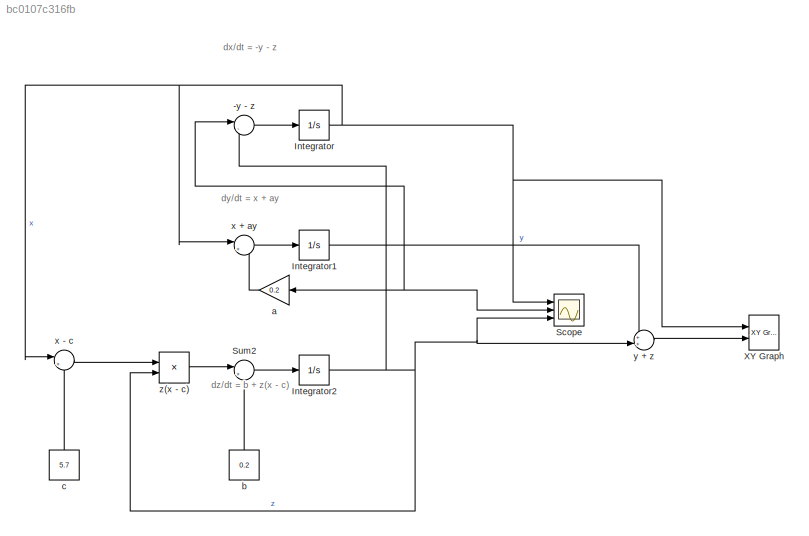
MODEL slx_bc0107c316fb
KIND model
CONFIG AbsTol = auto
CONFIG EnableMultiTasking = off
CONFIG FixedStep = auto
CONFIG MaxStep = auto
CONFIG MinStep = auto
CONFIG RelTol = 1e-3
CONFIG SampleTimeConstraint = Unconstrained
CONFIG SolverName = VariableStepAuto
CONFIG StartTime = 0.0
CONFIG StopTime = 200
BLOCK [Sum] -y - z
  Inputs = |--
  NameLocation = top
  Ports = [2, 1]
BLOCK [Integrator] Integrator 
  Ports = [1, 1]
BLOCK [Integrator] Integrator1
  Ports = [1, 1]
BLOCK [Integrator] Integrator2
  Ports = [1, 1]
BLOCK [Scope] Scope
  Floating = off
  NumInputPorts = 3
  Ports = [3]
  ScopeSpecificationString = Simulink.scopes.TimeScopeBlockCfg('CurrentConfiguration', extmgr.ConfigurationSet(extmgr.Configuration('Core','General UI',true),extmgr.Configuration('Core','Source UI',true),extmgr.Configuration('Sources','WiredSimulink',true),extmgr.Configuration('Visuals','Time Domain',true,'SerializedDisplays',{struct('MinYLimReal','-14.68673','MaxYLimReal','24.8428','YLabelReal','','MinYLimMag','0.00000','Max...<+1404ch>
BLOCK [Sum] Sum2
  Inputs = |++
  Ports = [2, 1]
BLOCK [Reference] XY Graph  REF=simulink/Sinks/XY Graph
  Ports = [2]
  SourceBlock = simulink/Sinks/XY Graph
  SourceProductBaseCode = SL
  SourceType = XY scope.
BLOCK [Gain] a
  Gain = 0.2
  NameLocation = top
BLOCK [Constant] b
  NameLocation = right
  Value = 0.2
BLOCK [Constant] c
  NameLocation = right
  Value = 5.7
BLOCK [Sum] x + ay
  Inputs = |++
  NameLocation = top
  Ports = [2, 1]
BLOCK [Sum] x - c
  Inputs = |+-
  NameLocation = top
  Ports = [2, 1]
BLOCK [Sum] y + z
  Inputs = ++|
  Ports = [2, 1]
BLOCK [Product] z(x - c)
  Ports = [2, 1]
ANNOTATION (root): dx/dt = -y - z
ANNOTATION (root): dy/dt = x + ay
ANNOTATION (root): dz/dt = b + z(x - c)
LINE -y - z:1 -> Integrator :1
NET Integrator :1 -> Scope:1, XY Graph:1, x + ay:1, x - c:1
NET Integrator1:1 -> -y - z:1, Scope:2, a:1, y + z:1
NET Integrator2:1 -> -y - z:2, Scope:3, y + z:2, z(x - c):2
LINE Sum2:1 -> Integrator2:1
LINE a:1 -> x + ay:2
LINE b:1 -> Sum2:2
LINE c:1 -> x - c:2
LINE x + ay:1 -> Integrator1:1
LINE x - c:1 -> z(x - c):1
LINE y + z:1 -> XY Graph:2
LINE z(x - c):1 -> Sum2:1
note: NET lines group one-source signal fan-out (src -> all destinations, sorted); 1:1 wires keep LINE
